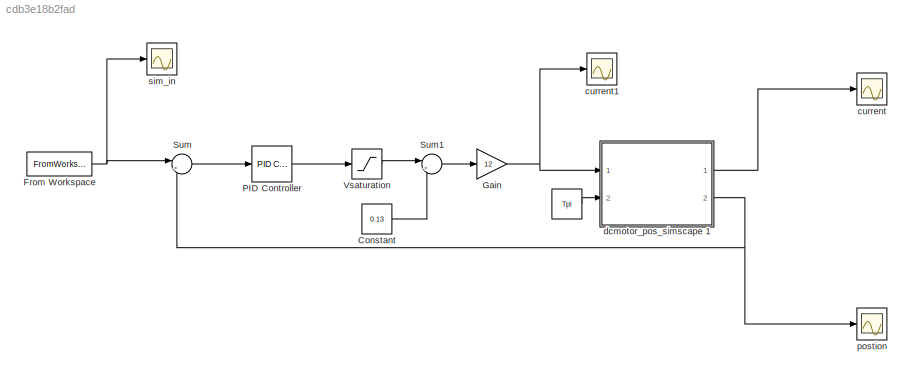
MODEL slx_cdb3e18b2fad
KIND model
CONFIG AbsTol = auto
CONFIG EnableMultiTasking = off
CONFIG FixedStep = auto
CONFIG MaxStep = auto
CONFIG MinStep = auto
CONFIG RelTol = 1e-3
CONFIG SampleTimeConstraint = Unconstrained
CONFIG Solver = VariableStepAuto
CONFIG SolverName = VariableStepAuto
CONFIG StartTime = 0.0
CONFIG StopTime = 3
BLOCK [Constant]  
  Value = Tpl
BLOCK [Constant] Constant
  Value = 0.13
BLOCK [FromWorkspace] From Workspace
  OutDataTypeStr = double
  OutputAfterFinalValue = Holding final value
  SampleTime = 0
  VariableName = sim_in
  ZeroCross = on
BLOCK [Gain] Gain
  Gain = 12
  OutDataTypeStr = Inherit: Inherit via internal rule
  ParamDataTypeStr = Inherit: Inherit via internal rule
  SaturateOnIntegerOverflow = off
BLOCK [Reference] PID Controller  REF=simulink/Continuous/PID Controller
  Ports = [1, 1]
  SourceBlock = simulink/Continuous/PID Controller
  SourceProductBaseCode = SL
  SourceProductName = Simulink
  SourceType = PID 1dof
BLOCK [Sum] Sum
  IconShape = round
  InputSameDT = off
  Inputs = |+-
  OutDataTypeStr = Inherit: Inherit via internal rule
  Ports = [2, 1]
  SaturateOnIntegerOverflow = off
BLOCK [Sum] Sum1
  IconShape = round
  InputSameDT = off
  Inputs = |++
  OutDataTypeStr = Inherit: Inherit via internal rule
  Ports = [2, 1]
  SaturateOnIntegerOverflow = off
BLOCK [Saturate] Vsaturation
  InputPortMap = u0
  LowerLimit = -1
  Ports = [1, 1]
  UpperLimit = 1
BLOCK [Scope] current
  NumInputPorts = 1
  Ports = [1]
  ScopeSpecificationString = Simulink.scopes.TimeScopeBlockCfg('CurrentConfiguration', extmgr.ConfigurationSet(extmgr.Configuration('Core','General UI',true),extmgr.Configuration('Core','Source UI',true),extmgr.Configuration('Sources','WiredSimulink',true,'DataLoggingVariableName','current_simscape','DataLogging',true,'DataLoggingSaveFormat','StructureWithTime'),extmgr.Configuration('Visuals','Time Domain',true,'SerializedDis...<+1525ch>
BLOCK [Scope] current1
  NumInputPorts = 1
  Ports = [1]
  ScopeSpecificationString = Simulink.scopes.TimeScopeBlockCfg('CurrentConfiguration', extmgr.ConfigurationSet(extmgr.Configuration('Core','General UI',true),extmgr.Configuration('Core','Source UI',true),extmgr.Configuration('Sources','WiredSimulink',true,'DataLoggingVariableName','ctrl_vol','DataLogging',true,'DataLoggingSaveFormat','StructureWithTime'),extmgr.Configuration('Visuals','Time Domain',true,'SerializedDisplays',{...<+1498ch>
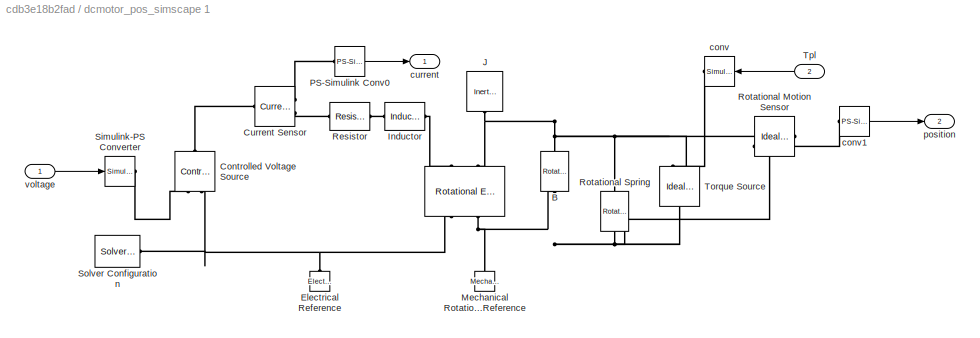
BLOCK [SubSystem] dcmotor_pos_simscape 1
  Ports = [2, 2]
  RequestExecContextInheritance = off
  Variant = off
BLOCK [Reference] dcmotor_pos_simscape 1/   REF=fl_lib/Electrical/Electrical Elements/Rotational
Electromechanical
Converter
  Ports = [0, 0, 0, 0, 0, 2, 2]
  SourceBlock = fl_lib/Electrical/Electrical Elements/Rotational\nElectromechanical\nConverter
  SourceProductBaseCode = SS
  SourceProductName = Simscape
  SourceType = Rotational\nElectromechanical\nConverter
BLOCK [Reference] dcmotor_pos_simscape 1/ Rotational Motion Sensor  REF=fl_lib/Mechanical/Mechanical Sensors/Ideal Rotational
Motion Sensor
  Ports = [0, 0, 0, 0, 0, 1, 3]
  SourceBlock = fl_lib/Mechanical/Mechanical Sensors/Ideal Rotational\nMotion Sensor
  SourceProductBaseCode = SS
  SourceProductName = Simscape
  SourceType = Ideal Rotational\nMotion Sensor
BLOCK [Reference] dcmotor_pos_simscape 1/ Torque Source  REF=fl_lib/Mechanical/Mechanical Sources/Ideal Torque Source
  Ports = [0, 0, 0, 0, 0, 1, 2]
  SourceBlock = fl_lib/Mechanical/Mechanical Sources/Ideal Torque Source
  SourceProductBaseCode = SS
  SourceProductName = Simscape
  SourceType = Ideal Torque Source
BLOCK [Reference] dcmotor_pos_simscape 1/B  REF=fl_lib/Mechanical/Rotational Elements/Rotational Damper
  Ports = [0, 0, 0, 0, 0, 1, 1]
  SourceBlock = fl_lib/Mechanical/Rotational Elements/Rotational Damper
  SourceProductBaseCode = SS
  SourceProductName = Simscape
  SourceType = Rotational Damper
BLOCK [Reference] dcmotor_pos_simscape 1/Controlled Voltage Source  REF=fl_lib/Electrical/Electrical Sources/Controlled Voltage
Source
  Ports = [0, 0, 0, 0, 0, 1, 2]
  SourceBlock = fl_lib/Electrical/Electrical Sources/Controlled Voltage\nSource
  SourceProductBaseCode = SS
  SourceProductName = Simscape
  SourceType = Controlled Voltage\nSource
BLOCK [Reference] dcmotor_pos_simscape 1/Current Sensor  REF=fl_lib/Electrical/Electrical Sensors/Current Sensor
  Ports = [0, 0, 0, 0, 0, 1, 2]
  SourceBlock = fl_lib/Electrical/Electrical Sensors/Current Sensor
  SourceProductBaseCode = SS
  SourceProductName = Simscape
  SourceType = Current Sensor
BLOCK [Reference] dcmotor_pos_simscape 1/Electrical Reference  REF=fl_lib/Electrical/Electrical Elements/Electrical Reference
  Ports = [0, 0, 0, 0, 0, 1]
  SourceBlock = fl_lib/Electrical/Electrical Elements/Electrical Reference
  SourceProductBaseCode = SS
  SourceProductName = Simscape
  SourceType = Electrical Reference
BLOCK [Reference] dcmotor_pos_simscape 1/Inductor  REF=fl_lib/Electrical/Electrical Elements/Inductor
  Ports = [0, 0, 0, 0, 0, 1, 1]
  SourceBlock = fl_lib/Electrical/Electrical Elements/Inductor
  SourceProductBaseCode = SS
  SourceProductName = Simscape
  SourceType = Inductor
BLOCK [Reference] dcmotor_pos_simscape 1/J  REF=fl_lib/Mechanical/Rotational Elements/Inertia
  Ports = [0, 0, 0, 0, 0, 1]
  SourceBlock = fl_lib/Mechanical/Rotational Elements/Inertia
  SourceProductBaseCode = SS
  SourceProductName = Simscape
  SourceType = Inertia
BLOCK [Reference] dcmotor_pos_simscape 1/Mechanical Rotational Reference  REF=fl_lib/Mechanical/Rotational Elements/Mechanical
Rotational Reference
  Ports = [0, 0, 0, 0, 0, 1]
  SourceBlock = fl_lib/Mechanical/Rotational Elements/Mechanical\nRotational Reference
  SourceProductBaseCode = SS
  SourceProductName = Simscape
  SourceType = Mechanical\nRotational Reference
BLOCK [Reference] dcmotor_pos_simscape 1/PS-Simulink Conv0  REF=nesl_utility/PS-Simulink
Converter
  Ports = [0, 1, 0, 0, 0, 1]
  SourceBlock = nesl_utility/PS-Simulink\nConverter
  SourceProductBaseCode = SS
  SourceProductName = Simscape
  SourceType = PS-Simulink\nConverter
BLOCK [Reference] dcmotor_pos_simscape 1/Resistor  REF=fl_lib/Electrical/Electrical Elements/Resistor
  Ports = [0, 0, 0, 0, 0, 1, 1]
  SourceBlock = fl_lib/Electrical/Electrical Elements/Resistor
  SourceProductBaseCode = SS
  SourceProductName = Simscape
  SourceType = Resistor
BLOCK [Reference] dcmotor_pos_simscape 1/Rotational Spring  REF=fl_lib/Mechanical/Rotational Elements/Rotational Spring
  Ports = [0, 0, 0, 0, 0, 1, 1]
  SourceBlock = fl_lib/Mechanical/Rotational Elements/Rotational Spring
  SourceProductBaseCode = SS
  SourceProductName = Simscape
  SourceType = Rotational Spring
BLOCK [Reference] dcmotor_pos_simscape 1/Simulink-PS Converter  REF=nesl_utility/Simulink-PS
Converter
  Ports = [1, 0, 0, 0, 0, 0, 1]
  SourceBlock = nesl_utility/Simulink-PS\nConverter
  SourceProductBaseCode = SS
  SourceProductName = Simscape
  SourceType = Simulink-PS\nConverter
BLOCK [Reference] dcmotor_pos_simscape 1/Solver Configuration  REF=nesl_utility/Solver
Configuration
  Ports = [0, 0, 0, 0, 0, 0, 1]
  SourceBlock = nesl_utility/Solver\nConfiguration
  SourceProductBaseCode = SS
  SourceProductName = Simscape
  SourceType = Solver\nConfiguration
BLOCK [Inport] dcmotor_pos_simscape 1/Tpl
  IconDisplay = Port number
  Port = 2
BLOCK [Reference] dcmotor_pos_simscape 1/conv  REF=nesl_utility/Simulink-PS
Converter
  Ports = [1, 0, 0, 0, 0, 0, 1]
  SourceBlock = nesl_utility/Simulink-PS\nConverter
  SourceProductBaseCode = SS
  SourceProductName = Simscape
  SourceType = Simulink-PS\nConverter
BLOCK [Reference] dcmotor_pos_simscape 1/conv1  REF=nesl_utility/PS-Simulink
Converter
  Ports = [0, 1, 0, 0, 0, 1]
  SourceBlock = nesl_utility/PS-Simulink\nConverter
  SourceProductBaseCode = SS
  SourceProductName = Simscape
  SourceType = PS-Simulink\nConverter
BLOCK [Outport] dcmotor_pos_simscape 1/current
  IconDisplay = Port number
BLOCK [Outport] dcmotor_pos_simscape 1/position
  IconDisplay = Port number
  Port = 2
BLOCK [Inport] dcmotor_pos_simscape 1/voltage
  IconDisplay = Port number
BLOCK [Scope] postion
  NumInputPorts = 1
  Ports = [1]
  ScopeSpecificationString = Simulink.scopes.TimeScopeBlockCfg('CurrentConfiguration', extmgr.ConfigurationSet(extmgr.Configuration('Core','General UI',true),extmgr.Configuration('Core','Source UI',true),extmgr.Configuration('Sources','WiredSimulink',true,'DataLoggingVariableName','position_simscape','DataLogging',true,'DataLoggingSaveFormat','StructureWithTime'),extmgr.Configuration('Visuals','Time Domain',true,'SerializedDi...<+1844ch>
BLOCK [Scope] sim_in
  NumInputPorts = 1
  Ports = [1]
  ScopeSpecificationString = Simulink.scopes.TimeScopeBlockCfg('CurrentConfiguration', extmgr.ConfigurationSet(extmgr.Configuration('Core','General UI',true),extmgr.Configuration('Core','Source UI',true),extmgr.Configuration('Sources','WiredSimulink',true,'DataLoggingVariableName','simin','DataLogging',true,'DataLoggingSaveFormat','StructureWithTime'),extmgr.Configuration('Visuals','Time Domain',true,'SerializedDisplays',{str...<+1509ch>
LINE  :1 -> dcmotor_pos_simscape 1:2
LINE Constant:1 -> Sum1:2
NET From Workspace:1 -> Sum:1, sim_in:1
NET Gain:1 -> current1:1, dcmotor_pos_simscape 1:1
LINE PID Controller:1 -> Vsaturation:1
LINE Sum1:1 -> Gain:1
LINE Sum:1 -> PID Controller:1
LINE Vsaturation:1 -> Sum1:1
LINE dcmotor_pos_simscape 1/PS-Simulink Conv0:1 -> dcmotor_pos_simscape 1/current:1
LINE dcmotor_pos_simscape 1/Tpl:1 -> dcmotor_pos_simscape 1/conv:1
LINE dcmotor_pos_simscape 1/conv1:1 -> dcmotor_pos_simscape 1/position:1
LINE dcmotor_pos_simscape 1/voltage:1 -> dcmotor_pos_simscape 1/Simulink-PS Converter:1
LINE dcmotor_pos_simscape 1:1 -> current:1
NET dcmotor_pos_simscape 1:2 -> Sum:2, postion:1
PLINE dcmotor_pos_simscape 1/ :LConn1 -- dcmotor_pos_simscape 1/Inductor:RConn1
PNET net1: dcmotor_pos_simscape 1/ :LConn2 -- dcmotor_pos_simscape 1/ Rotational Motion Sensor:LConn1 -- dcmotor_pos_simscape 1/ Torque Source:RConn2 -- dcmotor_pos_simscape 1/B:LConn1 -- dcmotor_pos_simscape 1/J:LConn1 -- dcmotor_pos_simscape 1/Rotational Spring:RConn1
PNET net2: dcmotor_pos_simscape 1/ :RConn1 -- dcmotor_pos_simscape 1/Controlled Voltage Source:RConn2 -- dcmotor_pos_simscape 1/Electrical Reference:LConn1 -- dcmotor_pos_simscape 1/Solver Configuration:RConn1
PNET net3: dcmotor_pos_simscape 1/ :RConn2 -- dcmotor_pos_simscape 1/ Rotational Motion Sensor:RConn1 -- dcmotor_pos_simscape 1/ Torque Source:LConn1 -- dcmotor_pos_simscape 1/B:RConn1 -- dcmotor_pos_simscape 1/Mechanical Rotational Reference:LConn1 -- dcmotor_pos_simscape 1/Rotational Spring:LConn1
PLINE dcmotor_pos_simscape 1/ Rotational Motion Sensor:RConn3 -- dcmotor_pos_simscape 1/conv1:LConn1
PLINE dcmotor_pos_simscape 1/ Torque Source:RConn1 -- dcmotor_pos_simscape 1/conv:RConn1
PLINE dcmotor_pos_simscape 1/Controlled Voltage Source:LConn1 -- dcmotor_pos_simscape 1/Current Sensor:LConn1
PLINE dcmotor_pos_simscape 1/Controlled Voltage Source:RConn1 -- dcmotor_pos_simscape 1/Simulink-PS Converter:RConn1
PLINE dcmotor_pos_simscape 1/Current Sensor:RConn1 -- dcmotor_pos_simscape 1/PS-Simulink Conv0:LConn1
PLINE dcmotor_pos_simscape 1/Current Sensor:RConn2 -- dcmotor_pos_simscape 1/Resistor:LConn1
PLINE dcmotor_pos_simscape 1/Inductor:LConn1 -- dcmotor_pos_simscape 1/Resistor:RConn1
note: NET lines group one-source signal fan-out (src -> all destinations, sorted); 1:1 wires keep LINE; PNET lines group multi-terminal physical nets as a canonical sorted terminal list (undirected conserving connections); 2-terminal nets keep the pairwise PLINE form
